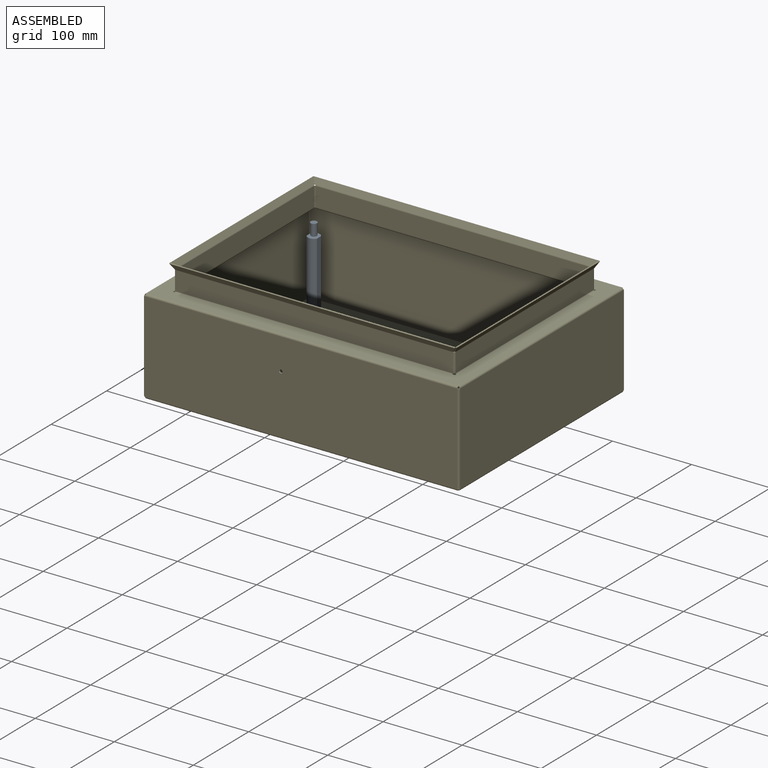
[diagram: assembled view]
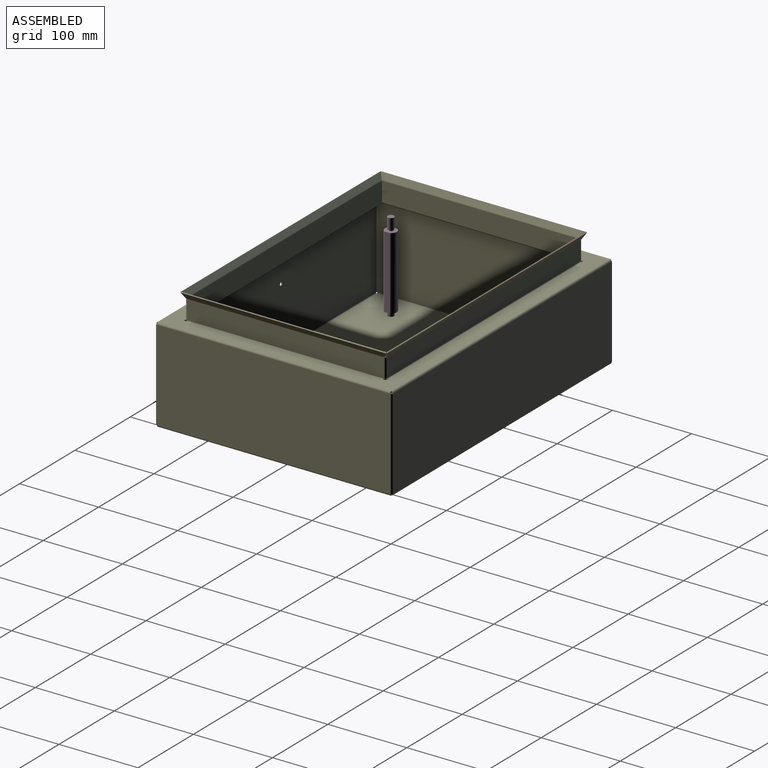
[diagram: assembled view, second angle]
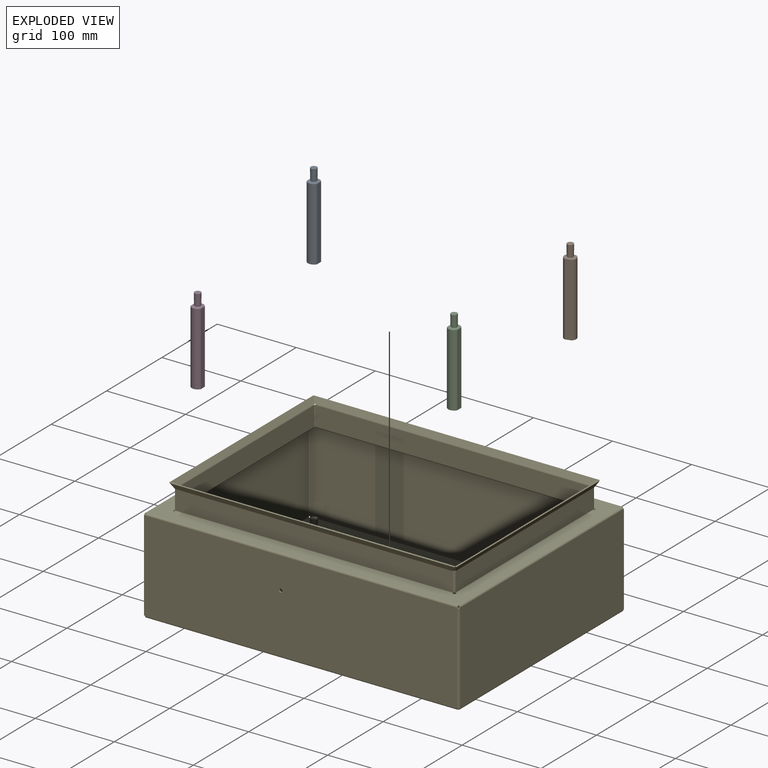
[diagram: exploded view]
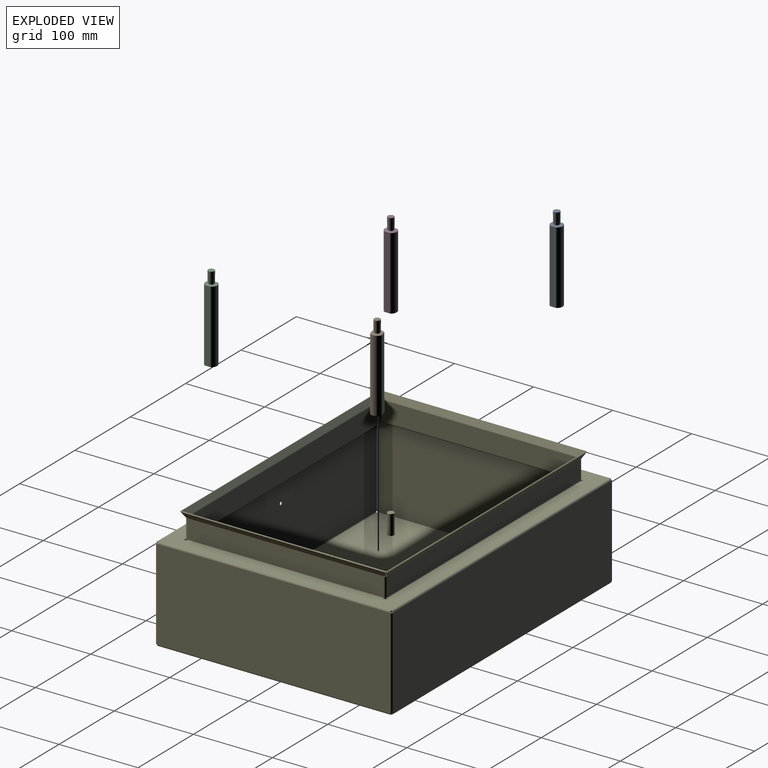
[diagram: exploded view, second angle]
ASSEMBLY  parts=5 mates=4
PART A: 11 faces, bbox 13x15x107.5 mm
  f0: plane 15.02x13mm, normal (0,0,1), area 120.3mm2, adj f1,f3,f8,f9,f10
  f1: cylinder r=7.51mm len=92mm, axis (0,0,1), area 1445.6mm2, adj f0,f2,f9,f10
  f2: plane 15.02x13mm, normal (0,0,-1), area 130.6mm2, adj f1,f3,f4,f9,f10
  f3: cylinder r=7.51mm len=92mm, axis (0,0,1), area 1445.6mm2, adj f0,f2,f9,f10
  f4: cylinder r=3.4mm len=19.75mm, axis (0,0,1), area 421.9mm2, adj f2,f5
  f5: cone r=3.4mm half-angle=58.9deg, axis (0,0,-1), area 42.4mm2, adj f4
  f6: plane 8x8mm, normal (0,0,1), area 50.3mm2, adj f7
  f7: cone r=3.83mm half-angle=0.7deg, axis (0,0,1), area 344.5mm2, adj f6,f8
  f8: torus R=3.85mm, axis (0,0,1), area 49.5mm2, adj f0,f7
  f9: plane 92x7.52mm, normal (1,0,0), area 692.1mm2, adj f0,f1,f2,f3
  f10: plane 92x7.52mm, normal (-1,0,0), area 692.1mm2, adj f0,f1,f2,f3
PART B: same geometry as A
PART C: same geometry as A
PART D: same geometry as A
PART E: 161 faces, bbox 399.4x299.4x152.7 mm
  f0: plane 1.35x0.98mm, normal (0,0,-1), area 1.3mm2, adj f2,f3,f4,f149
  f1: plane 1.35x0.98mm, normal (0,0,1), area 1.3mm2, adj f2,f3,f4,f145
  f2: plane 114.71x1.35mm, normal (-1,0,0), area 154.9mm2, adj f0,f1,f3,f4
  f3: plane 395.69x114.71mm, normal (0,-1,0), area 45377.9mm2, adj f0,f1,f2,f38,f146,f150,f160
  f4: plane 395.69x114.71mm, normal (0,1,0), area 45377.9mm2, adj f0,f1,f2,f39,f147,f151,f160
  f5: plane 3.35x1.35mm, normal (-1,0,0), area 4.5mm2, adj f10,f13,f14,f74
  f6: plane 2.37x1.35mm, normal (0,1,0), area 3.2mm2, adj f11,f13,f14,f94
  f7: plane 3.35x1.35mm, normal (1,0,0), area 4.5mm2, adj f12,f13,f14,f116
  f8: plane 3.35x1.35mm, normal (0,-1,0), area 4.5mm2, adj f9,f13,f14,f130
  f9: plane 3.35x1.35mm, normal (-1,0,0), area 4.5mm2, adj f8,f13,f14,f75
  f10: plane 3.35x1.35mm, normal (0,1,0), area 4.5mm2, adj f5,f13,f14,f93
  f11: plane 2.37x1.35mm, normal (1,0,0), area 3.2mm2, adj f6,f13,f14,f115
  f12: plane 3.35x1.35mm, normal (0,-1,0), area 4.5mm2, adj f7,f13,f14,f131
  f13: plane 394.71x294.71mm, normal (0,0,1), area 25205.2mm2, adj f5,f6,f7,f8,f9,f10,f11,f12
  f14: plane 394.71x294.71mm, normal (0,0,-1), area 25205.2mm2, adj f5,f6,f7,f8,f9,f10,f11,f12
  f15: plane 394.71x114.71mm, normal (0,1,0), area 45279.3mm2, adj f28,f46,f136,f142
  f16: plane 394.71x114.71mm, normal (0,-1,0), area 45279.3mm2, adj f29,f47,f137,f143
  f17: plane 1.35x0.98mm, normal (0,0,1), area 1.3mm2, adj f18,f20,f21,f23
  f18: plane 114.71x1.35mm, normal (0,-1,0), area 154.9mm2, adj f17,f19,f20,f21
  f19: plane 1.35x0.98mm, normal (0,0,-1), area 1.3mm2, adj f18,f20,f21,f31
  f20: plane 295.69x114.71mm, normal (-1,0,0), area 33920.3mm2, adj f17,f18,f19,f24,f28,f32
  f21: plane 295.69x114.71mm, normal (1,0,0), area 33920.3mm2, adj f17,f18,f19,f25,f29,f33
  f22: plane 2.35x2.35mm, normal (0,1,0), area 3.6mm2, adj f24,f25,f27,f135
  f23: plane 2.35x2.35mm, normal (0,-1,0), area 3.6mm2, adj f17,f24,f25,f145
  f24: cylinder r=2.35mm len=294.71mm, axis (0,1,0), area 1087.9mm2, adj f13,f20,f22,f23
  f25: cylinder r=1mm len=294.71mm, axis (0,1,0), area 462.9mm2, adj f14,f21,f22,f23
  f26: plane 2.35x2.35mm, normal (0,0,-1), area 3.6mm2, adj f28,f29,f30,f141
  f27: plane 2.35x2.35mm, normal (0,0,1), area 3.6mm2, adj f22,f28,f29,f135
  f28: cylinder r=2.35mm len=114.71mm, axis (0,0,-1), area 423.5mm2, adj f15,f20,f26,f27
  f29: cylinder r=1mm len=114.71mm, axis (0,0,-1), area 180.2mm2, adj f16,f21,f26,f27
  f30: plane 2.35x2.35mm, normal (0,1,0), area 3.6mm2, adj f26,f32,f33,f141
  f31: plane 2.35x2.35mm, normal (0,-1,0), area 3.6mm2, adj f19,f32,f33,f149
  f32: cylinder r=2.35mm len=294.71mm, axis (0,1,0), area 1087.9mm2, adj f20,f30,f31,f138
  f33: cylinder r=1mm len=294.71mm, axis (0,1,0), area 462.9mm2, adj f21,f30,f31,f139
  f34: plane 294.71x114.71mm, normal (1,0,0), area 33807.9mm2, adj f38,f42,f46,f50
  f35: plane 294.71x114.71mm, normal (-1,0,0), area 33807.9mm2, adj f39,f43,f47,f51
  f36: plane 2.35x2.35mm, normal (0,0,-1), area 3.6mm2, adj f38,f39,f49,f148
  f37: plane 2.35x2.35mm, normal (0,0,1), area 3.6mm2, adj f38,f39,f41,f144
  f38: cylinder r=2.35mm len=114.71mm, axis (0,0,-1), area 423.5mm2, adj f3,f34,f36,f37
  f39: cylinder r=1mm len=114.71mm, axis (0,0,-1), area 180.2mm2, adj f4,f35,f36,f37
  f40: plane 2.35x2.35mm, normal (0,1,0), area 3.6mm2, adj f42,f43,f45,f134
  f41: plane 2.35x2.35mm, normal (0,-1,0), area 3.6mm2, adj f37,f42,f43,f144
  f42: cylinder r=2.35mm len=294.71mm, axis (0,1,0), area 1087.9mm2, adj f13,f34,f40,f41
  f43: cylinder r=1mm len=294.71mm, axis (0,1,0), area 462.9mm2, adj f14,f35,f40,f41
  f44: plane 2.35x2.35mm, normal (0,0,-1), area 3.6mm2, adj f46,f47,f48,f140
  f45: plane 2.35x2.35mm, normal (0,0,1), area 3.6mm2, adj f40,f46,f47,f134
  f46: cylinder r=2.35mm len=114.71mm, axis (0,0,-1), area 423.5mm2, adj f15,f34,f44,f45
  f47: cylinder r=1mm len=114.71mm, axis (0,0,-1), area 180.2mm2, adj f16,f35,f44,f45
  f48: plane 2.35x2.35mm, normal (0,1,0), area 3.6mm2, adj f44,f50,f51,f140
  f49: plane 2.35x2.35mm, normal (0,-1,0), area 3.6mm2, adj f36,f50,f51,f148
  f50: cylinder r=2.35mm len=294.71mm, axis (0,1,0), area 1087.9mm2, adj f34,f48,f49,f138
  f51: cylinder r=1mm len=294.71mm, axis (0,1,0), area 462.9mm2, adj f35,f48,f49,f139
  f52: plane 350.06x24.03mm, normal (0,1,0), area 8410.3mm2, adj f72,f113,f129,f133
  f53: plane 350.06x24.03mm, normal (0,-1,0), area 8410.3mm2, adj f73,f114,f128,f132
  f54: plane 24.03x1.35mm, normal (-1,0,0), area 32.4mm2, adj f55,f56,f90,f94
  f55: plane 351.04x24.03mm, normal (0,-1,0), area 8433.8mm2, adj f54,f80,f92,f96
  f56: plane 351.04x24.03mm, normal (0,1,0), area 8433.8mm2, adj f54,f81,f91,f95
  f57: plane 248.71x24.03mm, normal (1,0,0), area 5975.3mm2, adj f69,f72,f77,f80
  f58: plane 248.71x24.03mm, normal (-1,0,0), area 5975.3mm2, adj f68,f73,f76,f81
  f59: plane 1.3x1.17mm, normal (-0.5,0,-0.87), area 1.8mm2, adj f63,f64,f65,f67
  f60: plane 259.44x1.17mm, normal (0.5,0,0.87), area 350.2mm2, adj f61,f63,f64,f65
  f61: plane 7.72x5.23mm, normal (-0.22,-0.89,-0.39), area 12.3mm2, adj f60,f62,f64,f65
  f62: plane 1.3x1.17mm, normal (-0.5,0,-0.87), area 1.8mm2, adj f61,f64,f65,f66
  f63: plane 7.72x5.23mm, normal (-0.22,0.89,-0.39), area 12.3mm2, adj f59,f60,f64,f65
  f64: plane 259.44x7.04mm, normal (0.87,0,-0.5), area 2076.3mm2, adj f59,f60,f61,f62,f63,f69
  f65: plane 259.44x7.04mm, normal (-0.87,0,0.5), area 2076.3mm2, adj f59,f60,f61,f62,f63,f68
  f66: plane 1.48x1.18mm, normal (0,-1,0), area 1.2mm2, adj f62,f68,f69,f79
  f67: plane 1.48x1.18mm, normal (0,1,0), area 1.2mm2, adj f59,f68,f69,f71
  f68: cylinder r=2.35mm len=248.71mm, axis (0,-1,0), area 306mm2, adj f58,f65,f66,f67
  f69: cylinder r=1mm len=248.71mm, axis (0,-1,0), area 130.2mm2, adj f57,f64,f66,f67
  f70: plane 2.35x2.35mm, normal (0,0,-1), area 3.6mm2, adj f72,f73,f75,f130
  f71: plane 2.35x2.35mm, normal (0,0,1), area 3.6mm2, adj f67,f72,f73,f126
  f72: cylinder r=2.35mm len=24.03mm, axis (0,0,-1), area 88.7mm2, adj f52,f57,f70,f71
  f73: cylinder r=1mm len=24.03mm, axis (0,0,-1), area 37.7mm2, adj f53,f58,f70,f71
  f74: plane 2.35x2.35mm, normal (0,-1,0), area 3.6mm2, adj f5,f76,f77,f78
  f75: plane 2.35x2.35mm, normal (0,1,0), area 3.6mm2, adj f9,f70,f76,f77
  f76: cylinder r=2.35mm len=248.71mm, axis (0,-1,0), area 918.1mm2, adj f14,f58,f74,f75
  f77: cylinder r=1mm len=248.71mm, axis (0,-1,0), area 390.7mm2, adj f13,f57,f74,f75
  f78: plane 2.35x2.35mm, normal (0,0,-1), area 3.6mm2, adj f74,f80,f81,f93
  f79: plane 2.35x2.35mm, normal (0,0,1), area 3.6mm2, adj f66,f80,f81,f89
  f80: cylinder r=2.35mm len=24.03mm, axis (0,0,-1), area 88.7mm2, adj f55,f57,f78,f79
  f81: cylinder r=1mm len=24.03mm, axis (0,0,-1), area 37.7mm2, adj f56,f58,f78,f79
  f82: plane 1.3x1.17mm, normal (0,0.5,-0.87), area 1.8mm2, adj f86,f87,f88,f89
  f83: plane 360.79x1.17mm, normal (0,-0.5,0.87), area 487.1mm2, adj f84,f86,f87,f88
  f84: plane 7.72x5.23mm, normal (-0.89,0.22,-0.39), area 12.3mm2, adj f83,f85,f87,f88
  f85: plane 1.17x0.68mm, normal (0,0.5,-0.87), area 0.4mm2, adj f84,f87,f88,f90
  f86: plane 7.72x5.23mm, normal (0.89,0.22,-0.39), area 12.3mm2, adj f82,f83,f87,f88
  f87: plane 360.79x7.04mm, normal (0,-0.87,-0.5), area 2900.3mm2, adj f82,f83,f84,f85,f86,f92
  f88: plane 360.79x7.04mm, normal (0,0.87,0.5), area 2900.3mm2, adj f82,f83,f84,f85,f86,f91
  f89: plane 1.48x1.18mm, normal (1,0,0), area 1.2mm2, adj f79,f82,f91,f92
  f90: plane 1.48x1.18mm, normal (-1,0,0), area 1.2mm2, adj f54,f85,f91,f92
  f91: cylinder r=2.35mm len=351.04mm, axis (1,0,0), area 431.9mm2, adj f56,f88,f89,f90
  f92: cylinder r=1mm len=351.04mm, axis (1,0,0), area 183.8mm2, adj f55,f87,f89,f90
  f93: plane 2.35x2.35mm, normal (1,0,0), area 3.6mm2, adj f10,f78,f95,f96
  f94: plane 2.35x2.35mm, normal (-1,0,0), area 3.6mm2, adj f6,f54,f95,f96
  f95: cylinder r=2.35mm len=351.04mm, axis (1,0,0), area 1295.8mm2, adj f14,f56,f93,f94
  f96: cylinder r=1mm len=351.04mm, axis (1,0,0), area 551.4mm2, adj f13,f55,f93,f94
  f97: plane 24.03x1.35mm, normal (0,-1,0), area 32.4mm2, adj f98,f99,f107,f115
  f98: plane 249.69x24.03mm, normal (-1,0,0), area 5998.9mm2, adj f97,f110,f113,f118
  f99: plane 249.69x24.03mm, normal (1,0,0), area 5998.9mm2, adj f97,f109,f114,f117
  f100: plane 1.17x0.68mm, normal (0.5,0,-0.87), area 0.4mm2, adj f104,f105,f106,f107
  f101: plane 259.44x1.17mm, normal (-0.5,0,0.87), area 350.2mm2, adj f102,f104,f105,f106
  f102: plane 7.72x5.23mm, normal (0.22,0.89,-0.39), area 12.3mm2, adj f101,f103,f105,f106
  f103: plane 1.3x1.17mm, normal (0.5,0,-0.87), area 1.8mm2, adj f102,f105,f106,f108
  f104: plane 7.72x5.23mm, normal (0.22,-0.89,-0.39), area 12.3mm2, adj f100,f101,f105,f106
  f105: plane 259.44x7.04mm, normal (-0.87,0,-0.5), area 2076.3mm2, adj f100,f101,f102,f103,f104,f110
  f106: plane 259.44x7.04mm, normal (0.87,0,0.5), area 2076.3mm2, adj f100,f101,f102,f103,f104,f109
  f107: plane 1.48x1.18mm, normal (0,-1,0), area 1.2mm2, adj f97,f100,f109,f110
  f108: plane 1.48x1.18mm, normal (0,1,0), area 1.2mm2, adj f103,f109,f110,f112
  f109: cylinder r=2.35mm len=249.69mm, axis (0,-1,0), area 307.2mm2, adj f99,f106,f107,f108
  f110: cylinder r=1mm len=249.69mm, axis (0,-1,0), area 130.7mm2, adj f98,f105,f107,f108
  f111: plane 2.35x2.35mm, normal (0,0,-1), area 3.6mm2, adj f113,f114,f116,f131
  f112: plane 2.35x2.35mm, normal (0,0,1), area 3.6mm2, adj f108,f113,f114,f127
  f113: cylinder r=2.35mm len=24.03mm, axis (0,0,-1), area 88.7mm2, adj f52,f98,f111,f112
  f114: cylinder r=1mm len=24.03mm, axis (0,0,-1), area 37.7mm2, adj f53,f99,f111,f112
  f115: plane 2.35x2.35mm, normal (0,-1,0), area 3.6mm2, adj f11,f97,f117,f118
  f116: plane 2.35x2.35mm, normal (0,1,0), area 3.6mm2, adj f7,f111,f117,f118
  f117: cylinder r=2.35mm len=249.69mm, axis (0,-1,0), area 921.7mm2, adj f14,f99,f115,f116
  f118: cylinder r=1mm len=249.69mm, axis (0,-1,0), area 392.2mm2, adj f13,f98,f115,f116
  f119: plane 1.3x1.17mm, normal (0,-0.5,-0.87), area 1.8mm2, adj f123,f124,f125,f127
  f120: plane 360.79x1.17mm, normal (0,0.5,0.87), area 487.1mm2, adj f121,f123,f124,f125
  f121: plane 7.72x5.23mm, normal (0.89,-0.22,-0.39), area 12.3mm2, adj f120,f122,f124,f125
  f122: plane 1.3x1.17mm, normal (0,-0.5,-0.87), area 1.8mm2, adj f121,f124,f125,f126
  f123: plane 7.72x5.23mm, normal (-0.89,-0.22,-0.39), area 12.3mm2, adj f119,f120,f124,f125
  f124: plane 360.79x7.04mm, normal (0,0.87,-0.5), area 2900.3mm2, adj f119,f120,f121,f122,f123,f129
  f125: plane 360.79x7.04mm, normal (0,-0.87,0.5), area 2900.3mm2, adj f119,f120,f121,f122,f123,f128
  f126: plane 1.48x1.18mm, normal (1,0,0), area 1.2mm2, adj f71,f122,f128,f129
  f127: plane 1.48x1.18mm, normal (-1,0,0), area 1.2mm2, adj f112,f119,f128,f129
  f128: cylinder r=2.35mm len=350.06mm, axis (1,0,0), area 430.7mm2, adj f53,f125,f126,f127
  f129: cylinder r=1mm len=350.06mm, axis (1,0,0), area 183.3mm2, adj f52,f124,f126,f127
  f130: plane 2.35x2.35mm, normal (1,0,0), area 3.6mm2, adj f8,f70,f132,f133
  f131: plane 2.35x2.35mm, normal (-1,0,0), area 3.6mm2, adj f12,f111,f132,f133
  f132: cylinder r=2.35mm len=350.06mm, axis (1,0,0), area 1292.2mm2, adj f14,f53,f130,f131
  f133: cylinder r=1mm len=350.06mm, axis (1,0,0), area 549.9mm2, adj f13,f52,f130,f131
  f134: plane 2.35x2.35mm, normal (1,0,0), area 3.6mm2, adj f40,f45,f136,f137
  f135: plane 2.35x2.35mm, normal (-1,0,0), area 3.6mm2, adj f22,f27,f136,f137
  f136: cylinder r=2.35mm len=394.71mm, axis (1,0,0), area 1457mm2, adj f13,f15,f134,f135
  f137: cylinder r=1mm len=394.71mm, axis (1,0,0), area 620mm2, adj f14,f16,f134,f135
  f138: plane 394.71x294.71mm, normal (0,0,-1), area 116327.9mm2, adj f32,f50,f142,f150
  f139: plane 394.71x294.71mm, normal (0,0,1), area 116126.8mm2, adj f33,f51,f143,f151,f152,f154,f156,f158
  f140: plane 2.35x2.35mm, normal (1,0,0), area 3.6mm2, adj f44,f48,f142,f143
  f141: plane 2.35x2.35mm, normal (-1,0,0), area 3.6mm2, adj f26,f30,f142,f143
  f142: cylinder r=2.35mm len=394.71mm, axis (1,0,0), area 1457mm2, adj f15,f138,f140,f141
  f143: cylinder r=1mm len=394.71mm, axis (1,0,0), area 620mm2, adj f16,f139,f140,f141
  f144: plane 2.35x2.35mm, normal (1,0,0), area 3.6mm2, adj f37,f41,f146,f147
  f145: plane 2.35x2.35mm, normal (-1,0,0), area 3.6mm2, adj f1,f23,f146,f147
  f146: cylinder r=2.35mm len=394.71mm, axis (1,0,0), area 1457mm2, adj f3,f13,f144,f145
  f147: cylinder r=1mm len=394.71mm, axis (1,0,0), area 620mm2, adj f4,f14,f144,f145
  f148: plane 2.35x2.35mm, normal (1,0,0), area 3.6mm2, adj f36,f49,f150,f151
  f149: plane 2.35x2.35mm, normal (-1,0,0), area 3.6mm2, adj f0,f31,f150,f151
  f150: cylinder r=2.35mm len=394.71mm, axis (1,0,0), area 1457mm2, adj f3,f138,f148,f149
  f151: cylinder r=1mm len=394.71mm, axis (1,0,0), area 620mm2, adj f4,f139,f148,f149
  f152: cylinder r=4mm len=25mm, axis (0,0,-1), area 628.3mm2, adj f139,f153
  f153: plane 8x8mm, normal (0,0,1), area 50.3mm2, adj f152
  f154: cylinder r=4mm len=25mm, axis (0,0,-1), area 628.3mm2, adj f139,f155
  f155: plane 8x8mm, normal (0,0,1), area 50.3mm2, adj f154
  f156: cylinder r=4mm len=25mm, axis (0,0,-1), area 628.3mm2, adj f139,f157
  f157: plane 8x8mm, normal (0,0,1), area 50.3mm2, adj f156
  f158: cylinder r=4mm len=25mm, axis (0,0,-1), area 628.3mm2, adj f139,f159
  f159: plane 8x8mm, normal (0,0,1), area 50.3mm2, adj f158
  f160: cylinder r=2.1mm len=4.2mm, axis (0,-1,0), area 17.8mm2, adj f3,f4
PLACE A rot(axis=(0,0,-1),179.5deg) t=(-202.89,107.56,9.86)mm
PLACE B rot(axis=(0,0,-1),73.3deg) t=(121.53,107.56,9.86)mm
PLACE C rot(axis=(0,0,-1),179.5deg) t=(121.53,-102.31,9.86)mm
PLACE D rot(axis=(0,0,-1),179.5deg) t=(-202.89,-102.31,9.86)mm
PLACE E t=(-40.68,2.63,-54.53)mm fixed
MATE revolute E.f158 <-> C.f1  axis (0,0,-1) through (121.53,-102.31,-27.89)mm
MATE revolute E.f152 <-> A.f1  axis (0,0,-1) through (-202.89,107.56,-27.89)mm
MATE revolute E.f156 <-> B.f1  axis (0,0,-1) through (121.53,107.56,-27.89)mm
MATE revolute E.f154 <-> D.f1  axis (0,0,-1) through (-202.89,-102.31,-27.89)mm
